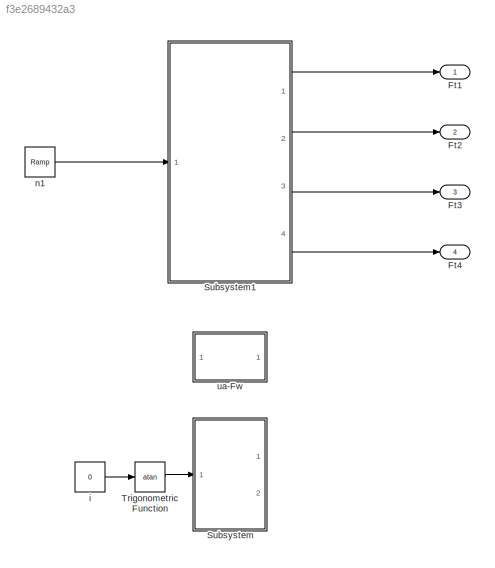
MODEL slx_f3e2689432a3
KIND model
CONFIG AbsTol = auto
CONFIG EnableMultiTasking = off
CONFIG FixedStep = auto
CONFIG MaxStep = auto
CONFIG MinStep = auto
CONFIG RelTol = 1e-3
CONFIG SampleTimeConstraint = Unconstrained
CONFIG SolverName = VariableStepAuto
CONFIG StartTime = 0.0
CONFIG StopTime = 10.0
WORKSPACE source: mxarray member
WORKSPACE ratio1 = 6.09
WORKSPACE ratio2 = 3.09
WORKSPACE ratio3 = 1.71
WORKSPACE ratio4 = 1
BLOCK [Outport] Ft1
BLOCK [Outport] Ft2
  Port = 2
BLOCK [Outport] Ft3
  Port = 3
BLOCK [Outport] Ft4
  Port = 4
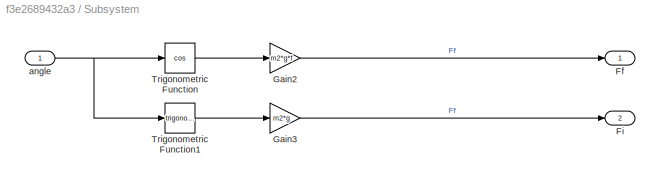
BLOCK [SubSystem] Subsystem
  Ports = [1, 2]
  RequestExecContextInheritance = off
BLOCK [Outport] Subsystem/Ff
BLOCK [Outport] Subsystem/Fi
  Port = 2
BLOCK [Gain] Subsystem/Gain2
  Gain = m2*g*f
BLOCK [Gain] Subsystem/Gain3
  Gain = m2*g
BLOCK [Trigonometry] Subsystem/Trigonometric Function
  Operator = cos
  Ports = [1, 1]
BLOCK [Trigonometry] Subsystem/Trigonometric Function1
  Ports = [1, 1]
BLOCK [Inport] Subsystem/angle
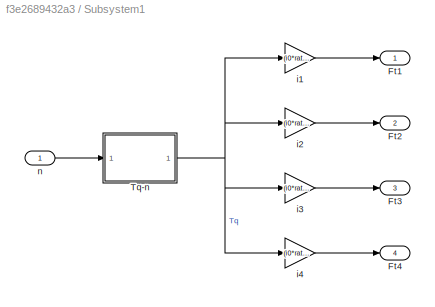
BLOCK [SubSystem] Subsystem1
  Ports = [1, 4]
  RequestExecContextInheritance = off
BLOCK [Outport] Subsystem1/Ft1
BLOCK [Outport] Subsystem1/Ft2
  Port = 2
BLOCK [Outport] Subsystem1/Ft3
  Port = 3
BLOCK [Outport] Subsystem1/Ft4
  Port = 4
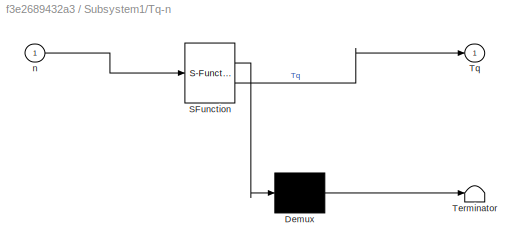
BLOCK [SubSystem] Subsystem1/Tq-n
  ErrorFcn = Stateflow.Translate.translate
  PermitHierarchicalResolution = ExplicitOnly
  Ports = [1, 1]
  RequestExecContextInheritance = off
  SFBlockType = MATLAB Function
  TreatAsAtomicUnit = on
BLOCK [Demux] Subsystem1/Tq-n/ Demux 
  Outputs = 1
  Ports = [1, 1]
BLOCK [S-Function] Subsystem1/Tq-n/ SFunction 
  EnableBusSupport = on
  FunctionName = sf_sfun
  PortCounts = [1 2]
  Ports = [1, 2]
  SFcnIsStateOwnerBlock = off
  SFunctionDeploymentMode = off
  Tag = Stateflow S-Function 2
BLOCK [Terminator] Subsystem1/Tq-n/ Terminator 
BLOCK [Outport] Subsystem1/Tq-n/Tq
  VectorParamsAs1DForOutWhenUnconnected = off
BLOCK [Inport] Subsystem1/Tq-n/n
BLOCK [Gain] Subsystem1/i1
  Gain = (i0*ratio1*kt)/r
BLOCK [Gain] Subsystem1/i2
  Gain = (i0*ratio2*kt)/r
BLOCK [Gain] Subsystem1/i3
  Gain = (i0*ratio3*kt)/r
BLOCK [Gain] Subsystem1/i4
  Gain = (i0*ratio4*kt)/r
BLOCK [Inport] Subsystem1/n
BLOCK [Trigonometry] Trigonometric Function
  Operator = atan
  Ports = [1, 1]
BLOCK [Constant] i
  Value = 0
BLOCK [Reference] n1  REF=simulink/Sources/Ramp
  Ports = [0, 1]
  SourceBlock = simulink/Sources/Ramp
  SourceProductBaseCode = SL
  SourceType = Ramp
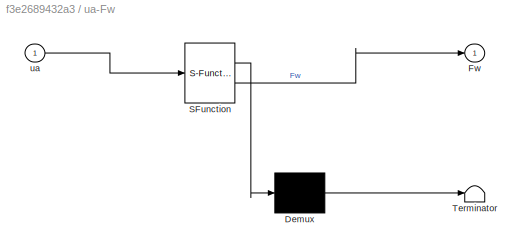
BLOCK [SubSystem] ua-Fw
  ErrorFcn = Stateflow.Translate.translate
  PermitHierarchicalResolution = ExplicitOnly
  Ports = [1, 1]
  RequestExecContextInheritance = off
  SFBlockType = MATLAB Function
  TreatAsAtomicUnit = on
BLOCK [Demux] ua-Fw/ Demux 
  Outputs = 1
  Ports = [1, 1]
BLOCK [S-Function] ua-Fw/ SFunction 
  EnableBusSupport = on
  FunctionName = sf_sfun
  PortCounts = [1 2]
  Ports = [1, 2]
  SFcnIsStateOwnerBlock = off
  SFunctionDeploymentMode = off
  Tag = Stateflow S-Function 1
BLOCK [Terminator] ua-Fw/ Terminator 
BLOCK [Outport] ua-Fw/Fw
  VectorParamsAs1DForOutWhenUnconnected = off
BLOCK [Inport] ua-Fw/ua
LINE Subsystem/Gain2:1 -> Subsystem/Ff:1
LINE Subsystem/Gain3:1 -> Subsystem/Fi:1
LINE Subsystem/Trigonometric Function1:1 -> Subsystem/Gain3:1
LINE Subsystem/Trigonometric Function:1 -> Subsystem/Gain2:1
NET Subsystem/angle:1 -> Subsystem/Trigonometric Function1:1, Subsystem/Trigonometric Function:1
NET Subsystem1/Tq-n:1 -> Subsystem1/i1:1, Subsystem1/i2:1, Subsystem1/i3:1, Subsystem1/i4:1
LINE Subsystem1/i1:1 -> Subsystem1/Ft1:1
LINE Subsystem1/i2:1 -> Subsystem1/Ft2:1
LINE Subsystem1/i3:1 -> Subsystem1/Ft3:1
LINE Subsystem1/i4:1 -> Subsystem1/Ft4:1
LINE Subsystem1/n:1 -> Subsystem1/Tq-n:1
LINE Subsystem1:1 -> Ft1:1
LINE Subsystem1:2 -> Ft2:1
LINE Subsystem1:3 -> Ft3:1
LINE Subsystem1:4 -> Ft4:1
LINE Trigonometric Function:1 -> Subsystem:1
LINE i:1 -> Trigonometric Function:1
LINE n1:1 -> Subsystem1:1
note: NET lines group one-source signal fan-out (src -> all destinations, sorted); 1:1 wires keep LINE
CHART Subsystem1/Tq-n states=1 transitions=1
  STATE_LABEL 'eML_blk_kernel()'
  STATE_LABEL 'SCRIPT:\nfunction Tq = fcn(n)\n%#codegen\n\nTq = -19.313+295.27*(n/1000)-165.44*(n/1000)^2+40.874*(n/1000)^3-3.8445*(n/1000)^4;'
CHART ua-Fw states=1 transitions=1
  STATE_LABEL 'eML_blk_kernel()'
  STATE_LABEL 'SCRIPT:\nfunction Fw = fcn(ua)\n%#codegen\nCA=2.77;\nFw =(CA*ua*ua)/21.15;'
CHART  states=0 transitions=0
CHART  states=0 transitions=0
